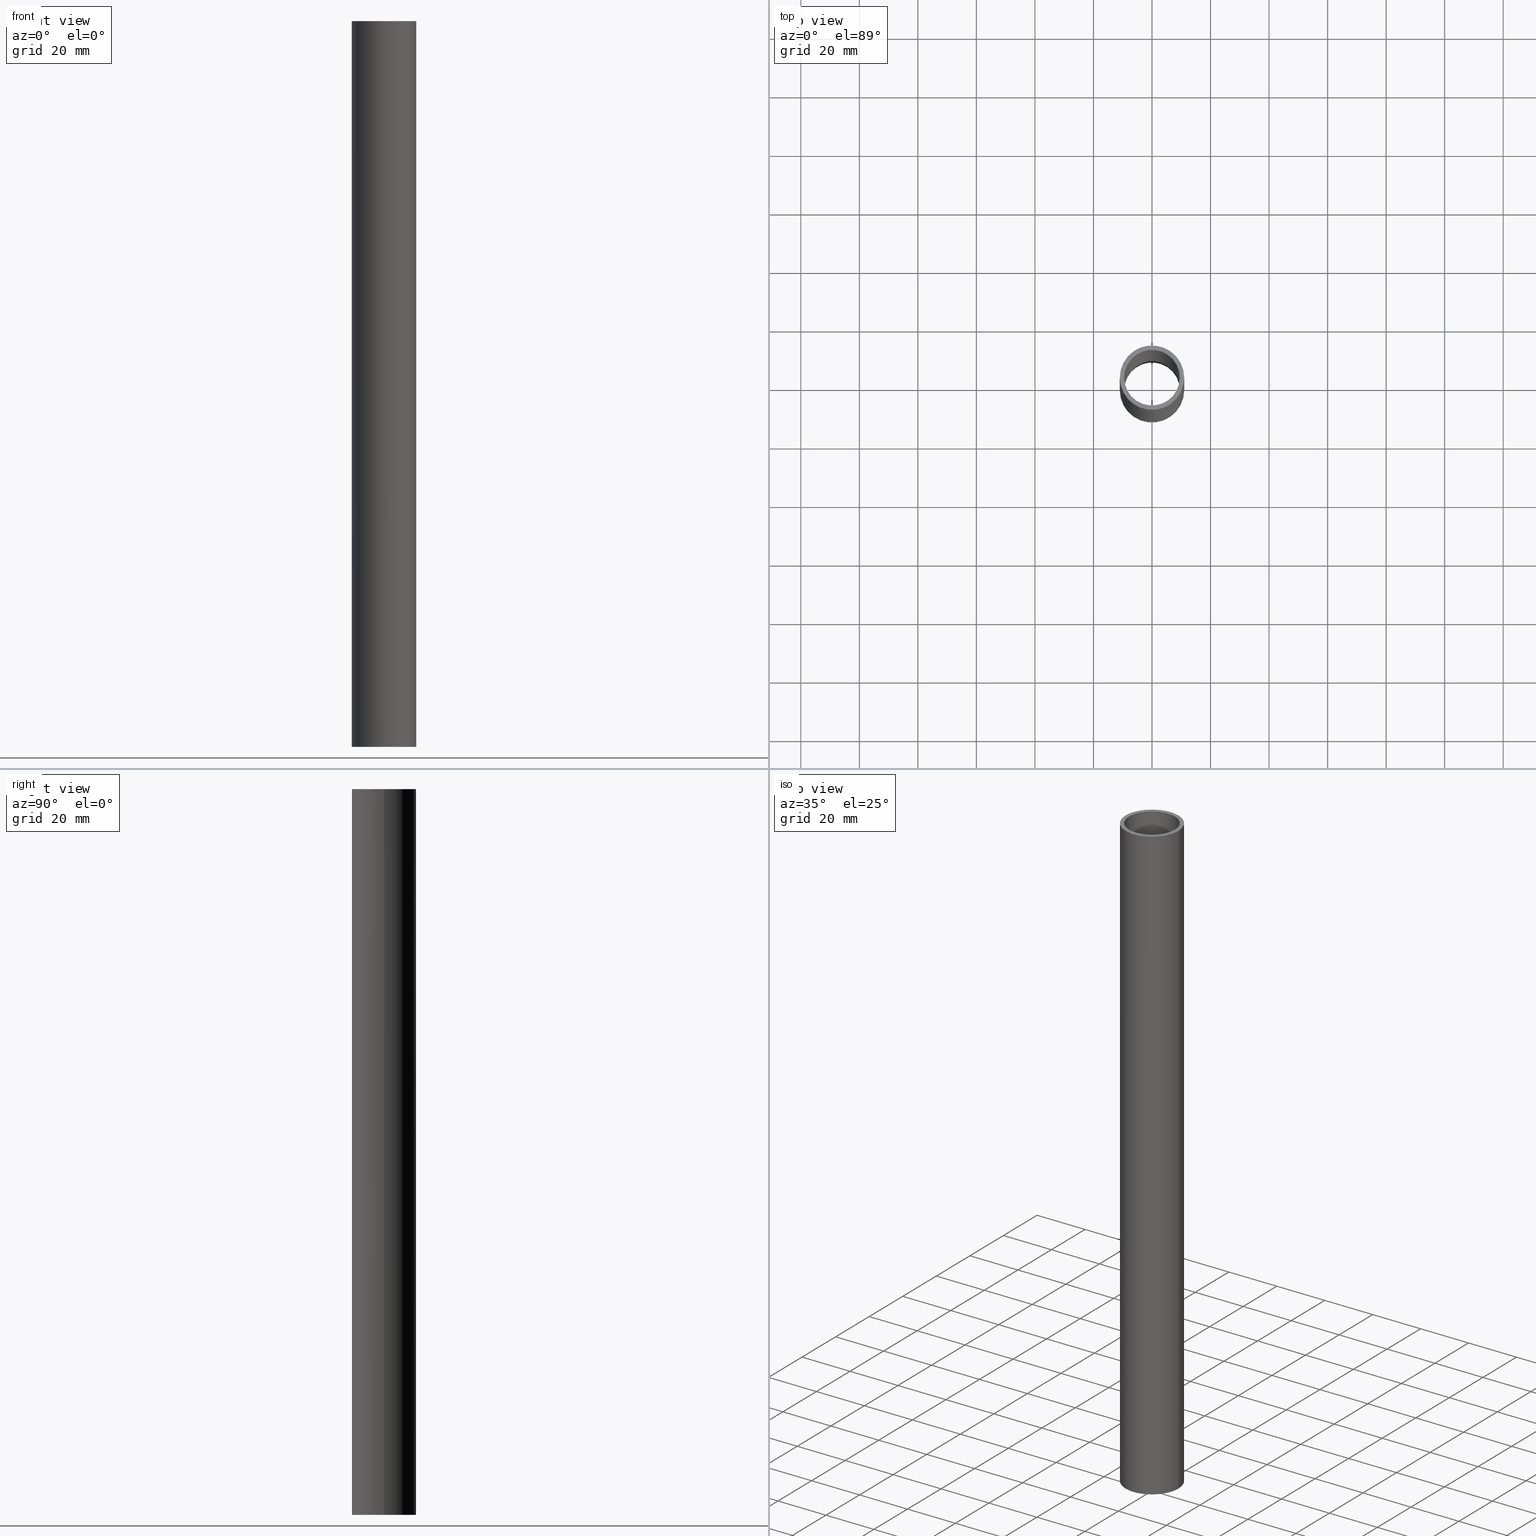
[diagram: canonical four-view strip — front | top / right | iso, engineering-drawing reading convention]
A machine part, canonical four-view strip (front | top / right | iso — engineering-drawing reading convention). The complete STEP part file that produces these views, byte-faithful:
ISO-10303-21;
HEADER;
/****************************************************************
 * Generated by software with PDE/Lib inside                    *
 * PDElib Version v4.4, created Mon 02/23/2004                  *
 * International Technegroup Inc. (www.iti-oh.com)              *
 ****************************************************************/
FILE_DESCRIPTION(('STEP AP203'),'2;1');
FILE_NAME('XT10248.stp','2011-03-21T16:35:04',(''),(''),'2009.3.110','THINKDESIGN','');
FILE_SCHEMA(('CONFIG_CONTROL_DESIGN'));
ENDSEC;
DATA;
#2=CARTESIAN_POINT('',(0.0,0.0,0.0));
#3=DIRECTION('',(0.0,0.0,1.0));
#4=DIRECTION('',(1.0,0.0,0.0));
#5=AXIS2_PLACEMENT_3D('',#2,#3,#4);
#6=CYLINDRICAL_SURFACE('',#5,11.0);
#7=CARTESIAN_POINT('',(11.0,0.0,0.0));
#8=VERTEX_POINT('',#7);
#9=CARTESIAN_POINT('',(-11.0,0.0,0.0));
#10=VERTEX_POINT('',#9);
#11=CARTESIAN_POINT('',(0.0,0.0,0.0));
#12=DIRECTION('',(0.0,0.0,1.0));
#13=DIRECTION('',(1.0,0.0,0.0));
#14=AXIS2_PLACEMENT_3D('',#11,#12,#13);
#15=CIRCLE('',#14,11.0);
#16=EDGE_CURVE('',#8,#10,#15,.T.);
#17=ORIENTED_EDGE('',*,*,#16,.T.);
#18=CARTESIAN_POINT('',(0.0,0.0,0.0));
#19=DIRECTION('',(0.0,0.0,1.0));
#20=DIRECTION('',(1.0,0.0,0.0));
#21=AXIS2_PLACEMENT_3D('',#18,#19,#20);
#22=CIRCLE('',#21,11.0);
#23=EDGE_CURVE('',#10,#8,#22,.T.);
#24=ORIENTED_EDGE('',*,*,#23,.T.);
#25=CARTESIAN_POINT('',(11.0,0.0,248.0));
#26=VERTEX_POINT('',#25);
#27=CARTESIAN_POINT('',(11.0,0.0,0.0));
#28=DIRECTION('',(0.0,0.0,1.0));
#29=VECTOR('',#28,248.0);
#30=LINE('',#27,#29);
#31=EDGE_CURVE('',#8,#26,#30,.T.);
#32=ORIENTED_EDGE('',*,*,#31,.T.);
#33=CARTESIAN_POINT('',(-11.0,0.0,248.0));
#34=VERTEX_POINT('',#33);
#35=CARTESIAN_POINT('',(0.0,0.0,248.0));
#36=DIRECTION('',(0.0,0.0,1.0));
#37=DIRECTION('',(1.0,0.0,0.0));
#38=AXIS2_PLACEMENT_3D('',#35,#36,#37);
#39=CIRCLE('',#38,11.0);
#40=EDGE_CURVE('',#34,#26,#39,.T.);
#41=ORIENTED_EDGE('',*,*,#40,.F.);
#42=CARTESIAN_POINT('',(0.0,0.0,248.0));
#43=DIRECTION('',(0.0,0.0,1.0));
#44=DIRECTION('',(1.0,0.0,0.0));
#45=AXIS2_PLACEMENT_3D('',#42,#43,#44);
#46=CIRCLE('',#45,11.0);
#47=EDGE_CURVE('',#26,#34,#46,.T.);
#48=ORIENTED_EDGE('',*,*,#47,.F.);
#49=ORIENTED_EDGE('',*,*,#31,.F.);
#50=EDGE_LOOP('',(#17,#24,#32,#41,#48,#49));
#51=FACE_OUTER_BOUND('',#50,.T.);
#52=ADVANCED_FACE('',(#51),#6,.T.);
#53=CARTESIAN_POINT('',(0.0,0.0,0.0));
#54=DIRECTION('',(0.0,0.0,-1.0));
#55=DIRECTION('',(1.0,-2.449294E-016,0.0));
#56=AXIS2_PLACEMENT_3D('',#53,#54,#55);
#57=CYLINDRICAL_SURFACE('',#56,9.500000000000000);
#58=CARTESIAN_POINT('',(9.500000000000000,-3.552714E-015,0.0));
#59=VERTEX_POINT('',#58);
#60=CARTESIAN_POINT('',(-9.500000000000000,0.0,0.0));
#61=VERTEX_POINT('',#60);
#62=CARTESIAN_POINT('',(0.0,0.0,0.0));
#63=DIRECTION('',(0.0,0.0,-1.0));
#64=DIRECTION('',(1.0,0.0,0.0));
#65=AXIS2_PLACEMENT_3D('',#62,#63,#64);
#66=CIRCLE('',#65,9.500000000000000);
#67=EDGE_CURVE('',#59,#61,#66,.T.);
#68=ORIENTED_EDGE('',*,*,#67,.T.);
#69=CARTESIAN_POINT('',(0.0,0.0,0.0));
#70=DIRECTION('',(0.0,0.0,-1.0));
#71=DIRECTION('',(1.0,0.0,0.0));
#72=AXIS2_PLACEMENT_3D('',#69,#70,#71);
#73=CIRCLE('',#72,9.500000000000000);
#74=EDGE_CURVE('',#61,#59,#73,.T.);
#75=ORIENTED_EDGE('',*,*,#74,.T.);
#76=CARTESIAN_POINT('',(9.500000000000000,-3.552714E-015,248.0));
#77=VERTEX_POINT('',#76);
#78=CARTESIAN_POINT('',(9.500000000000000,-3.552714E-015,0.0));
#79=DIRECTION('',(0.0,0.0,1.0));
#80=VECTOR('',#79,248.0);
#81=LINE('',#78,#80);
#82=EDGE_CURVE('',#59,#77,#81,.T.);
#83=ORIENTED_EDGE('',*,*,#82,.T.);
#84=CARTESIAN_POINT('',(-9.500000000000000,0.0,248.0));
#85=VERTEX_POINT('',#84);
#86=CARTESIAN_POINT('',(0.0,0.0,248.0));
#87=DIRECTION('',(0.0,0.0,-1.0));
#88=DIRECTION('',(1.0,0.0,0.0));
#89=AXIS2_PLACEMENT_3D('',#86,#87,#88);
#90=CIRCLE('',#89,9.500000000000000);
#91=EDGE_CURVE('',#85,#77,#90,.T.);
#92=ORIENTED_EDGE('',*,*,#91,.F.);
#93=CARTESIAN_POINT('',(0.0,0.0,248.0));
#94=DIRECTION('',(0.0,0.0,-1.0));
#95=DIRECTION('',(1.0,0.0,0.0));
#96=AXIS2_PLACEMENT_3D('',#93,#94,#95);
#97=CIRCLE('',#96,9.500000000000000);
#98=EDGE_CURVE('',#77,#85,#97,.T.);
#99=ORIENTED_EDGE('',*,*,#98,.F.);
#100=ORIENTED_EDGE('',*,*,#82,.F.);
#101=EDGE_LOOP('',(#68,#75,#83,#92,#99,#100));
#102=FACE_OUTER_BOUND('',#101,.T.);
#103=ADVANCED_FACE('',(#102),#57,.F.);
#104=CARTESIAN_POINT('',(-13.200000668602250,-13.200000668655981,0.0));
#105=DIRECTION('',(0.0,0.0,1.0));
#106=DIRECTION('',(1.0,0.0,0.0));
#107=AXIS2_PLACEMENT_3D('',#104,#105,#106);
#108=PLANE('',#107);
#109=ORIENTED_EDGE('',*,*,#23,.F.);
#110=ORIENTED_EDGE('',*,*,#16,.F.);
#111=EDGE_LOOP('',(#109,#110));
#112=FACE_OUTER_BOUND('',#111,.T.);
#113=ORIENTED_EDGE('',*,*,#74,.F.);
#114=ORIENTED_EDGE('',*,*,#67,.F.);
#115=EDGE_LOOP('',(#113,#114));
#116=FACE_BOUND('',#115,.T.);
#117=ADVANCED_FACE('',(#112,#116),#108,.F.);
#118=CARTESIAN_POINT('',(-13.200000668602250,-13.200000668655981,248.0));
#119=DIRECTION('',(0.0,0.0,1.0));
#120=DIRECTION('',(1.0,0.0,0.0));
#121=AXIS2_PLACEMENT_3D('',#118,#119,#120);
#122=PLANE('',#121);
#123=ORIENTED_EDGE('',*,*,#47,.T.);
#124=ORIENTED_EDGE('',*,*,#40,.T.);
#125=EDGE_LOOP('',(#123,#124));
#126=FACE_OUTER_BOUND('',#125,.T.);
#127=ORIENTED_EDGE('',*,*,#98,.T.);
#128=ORIENTED_EDGE('',*,*,#91,.T.);
#129=EDGE_LOOP('',(#127,#128));
#130=FACE_BOUND('',#129,.T.);
#131=ADVANCED_FACE('',(#126,#130),#122,.T.);
#132=CLOSED_SHELL('',(#52,#103,#117,#131));
#133=MANIFOLD_SOLID_BREP('',#132);
#139=(NAMED_UNIT(*)PLANE_ANGLE_UNIT()SI_UNIT($,.RADIAN.));
#140=DIMENSIONAL_EXPONENTS(0.0,0.0,0.0,0.0,0.0,0.0,0.0);
#141=PLANE_ANGLE_MEASURE_WITH_UNIT(PLANE_ANGLE_MEASURE(0.017453292500000),#139);
#145=(CONVERSION_BASED_UNIT('DEGREE',#141)NAMED_UNIT(#140)PLANE_ANGLE_UNIT());
#149=(NAMED_UNIT(*)SI_UNIT($,.STERADIAN.)SOLID_ANGLE_UNIT());
#153=(LENGTH_UNIT()NAMED_UNIT(*)SI_UNIT(.MILLI.,.METRE.));
#155=UNCERTAINTY_MEASURE_WITH_UNIT(LENGTH_MEASURE(0.001000000000000),#153,'DISTANCE_ACCURACY_VALUE','');
#157=(GEOMETRIC_REPRESENTATION_CONTEXT(3)GLOBAL_UNCERTAINTY_ASSIGNED_CONTEXT((#155))GLOBAL_UNIT_ASSIGNED_CONTEXT((#145,#149,#153))REPRESENTATION_CONTEXT('thinkdesign','2009.3.110'));
#158=ADVANCED_BREP_SHAPE_REPRESENTATION('',(#133),#157);
#159=APPLICATION_CONTEXT('configuration controlled 3D designs of mechanical parts and assemblies');
#160=APPLICATION_PROTOCOL_DEFINITION('International Standard','config_control_design',1995,#159);
#161=MECHANICAL_CONTEXT('None',#159,'mechanical');
#162=PRODUCT('None','None','None',(#161));
#163=PRODUCT_RELATED_PRODUCT_CATEGORY('detail',$,(#162));
#164=PRODUCT_CATEGORY('part',$);
#165=PRODUCT_CATEGORY_RELATIONSHIP('None','None',#164,#163);
#166=PERSON('PERSON1','None','None',$,$,$);
#167=ORGANIZATION('','None','None');
#168=PERSON_AND_ORGANIZATION(#166,#167);
#169=PERSON_AND_ORGANIZATION_ROLE('design_owner');
#170=CC_DESIGN_PERSON_AND_ORGANIZATION_ASSIGNMENT(#168,#169,(#162));
#171=PRODUCT_DEFINITION_FORMATION_WITH_SPECIFIED_SOURCE('None','None',#162,.NOT_KNOWN.);
#172=PERSON('PERSON2','None','None',$,$,$);
#173=ORGANIZATION('','None','None');
#174=PERSON_AND_ORGANIZATION(#172,#173);
#175=PERSON_AND_ORGANIZATION_ROLE('creator');
#176=CC_DESIGN_PERSON_AND_ORGANIZATION_ASSIGNMENT(#174,#175,(#171));
#177=PERSON('PERSON3','None','None',$,$,$);
#178=ORGANIZATION('','None','None');
#179=PERSON_AND_ORGANIZATION(#177,#178);
#180=PERSON_AND_ORGANIZATION_ROLE('part_supplier');
#181=CC_DESIGN_PERSON_AND_ORGANIZATION_ASSIGNMENT(#179,#180,(#171));
#182=APPROVAL_STATUS('approved');
#183=APPROVAL(#182,'None');
#184=PERSON('PERSON4','None','None',$,$,$);
#185=ORGANIZATION('','None','None');
#186=PERSON_AND_ORGANIZATION(#184,#185);
#187=APPROVAL_ROLE('None');
#188=APPROVAL_PERSON_ORGANIZATION(#186,#183,#187);
#189=CALENDAR_DATE(2011,21,3);
#190=COORDINATED_UNIVERSAL_TIME_OFFSET(0,0,.AHEAD.);
#191=LOCAL_TIME(16,35,4.0,#190);
#192=DATE_AND_TIME(#189,#191);
#193=APPROVAL_DATE_TIME(#192,#183);
#194=CC_DESIGN_APPROVAL(#183,(#171));
#195=SECURITY_CLASSIFICATION_LEVEL('unclassified');
#196=SECURITY_CLASSIFICATION('None','None',#195);
#197=CC_DESIGN_SECURITY_CLASSIFICATION(#196,(#171));
#198=APPROVAL_STATUS('approved');
#199=APPROVAL(#198,'None');
#200=PERSON('PERSON5','None','None',$,$,$);
#201=ORGANIZATION('','None','None');
#202=PERSON_AND_ORGANIZATION(#200,#201);
#203=APPROVAL_ROLE('None');
#204=APPROVAL_PERSON_ORGANIZATION(#202,#199,#203);
#205=CALENDAR_DATE(2011,21,3);
#206=COORDINATED_UNIVERSAL_TIME_OFFSET(0,0,.AHEAD.);
#207=LOCAL_TIME(16,35,4.0,#206);
#208=DATE_AND_TIME(#205,#207);
#209=APPROVAL_DATE_TIME(#208,#199);
#210=CC_DESIGN_APPROVAL(#199,(#196));
#211=PERSON('PERSON6','None','None',$,$,$);
#212=ORGANIZATION('','None','None');
#213=PERSON_AND_ORGANIZATION(#211,#212);
#214=PERSON_AND_ORGANIZATION_ROLE('classification_officer');
#215=CC_DESIGN_PERSON_AND_ORGANIZATION_ASSIGNMENT(#213,#214,(#196));
#216=DATE_TIME_ROLE('classification_date');
#217=CALENDAR_DATE(2011,21,3);
#218=COORDINATED_UNIVERSAL_TIME_OFFSET(0,0,.AHEAD.);
#219=LOCAL_TIME(16,35,4.0,#218);
#220=DATE_AND_TIME(#217,#219);
#221=CC_DESIGN_DATE_AND_TIME_ASSIGNMENT(#220,#216,(#196));
#222=DESIGN_CONTEXT('part definition',#159,'design');
#223=DOCUMENT_TYPE('cad_filename');
#224=DOCUMENT('None','None','None',#223);
#225=PRODUCT_DEFINITION_WITH_ASSOCIATED_DOCUMENTS('None','None',#171,#222,(#224));
#226=PERSON('PERSON7','None','None',$,$,$);
#227=ORGANIZATION('','None','None');
#228=PERSON_AND_ORGANIZATION(#226,#227);
#229=PERSON_AND_ORGANIZATION_ROLE('creator');
#230=CC_DESIGN_PERSON_AND_ORGANIZATION_ASSIGNMENT(#228,#229,(#225));
#231=DATE_TIME_ROLE('creation_date');
#232=CALENDAR_DATE(2011,21,3);
#233=COORDINATED_UNIVERSAL_TIME_OFFSET(0,0,.AHEAD.);
#234=LOCAL_TIME(16,35,4.0,#233);
#235=DATE_AND_TIME(#232,#234);
#236=CC_DESIGN_DATE_AND_TIME_ASSIGNMENT(#235,#231,(#225));
#237=APPROVAL_STATUS('approved');
#238=APPROVAL(#237,'None');
#239=PERSON('PERSON8','None','None',$,$,$);
#240=ORGANIZATION('','None','None');
#241=PERSON_AND_ORGANIZATION(#239,#240);
#242=APPROVAL_ROLE('None');
#243=APPROVAL_PERSON_ORGANIZATION(#241,#238,#242);
#244=CALENDAR_DATE(2011,21,3);
#245=COORDINATED_UNIVERSAL_TIME_OFFSET(0,0,.AHEAD.);
#246=LOCAL_TIME(16,35,4.0,#245);
#247=DATE_AND_TIME(#244,#246);
#248=APPROVAL_DATE_TIME(#247,#238);
#249=CC_DESIGN_APPROVAL(#238,(#225));
#250=PRODUCT_DEFINITION_SHAPE('None','None',#225);
#251=SHAPE_DEFINITION_REPRESENTATION(#250,#158);
#252=DIMENSIONAL_EXPONENTS(0.0,0.0,0.0,0.0,0.0,0.0,0.0);
#253=DIMENSIONAL_EXPONENTS(1.0,0.0,0.0,0.0,0.0,0.0,0.0);
ENDSEC;
END-ISO-10303-21;
